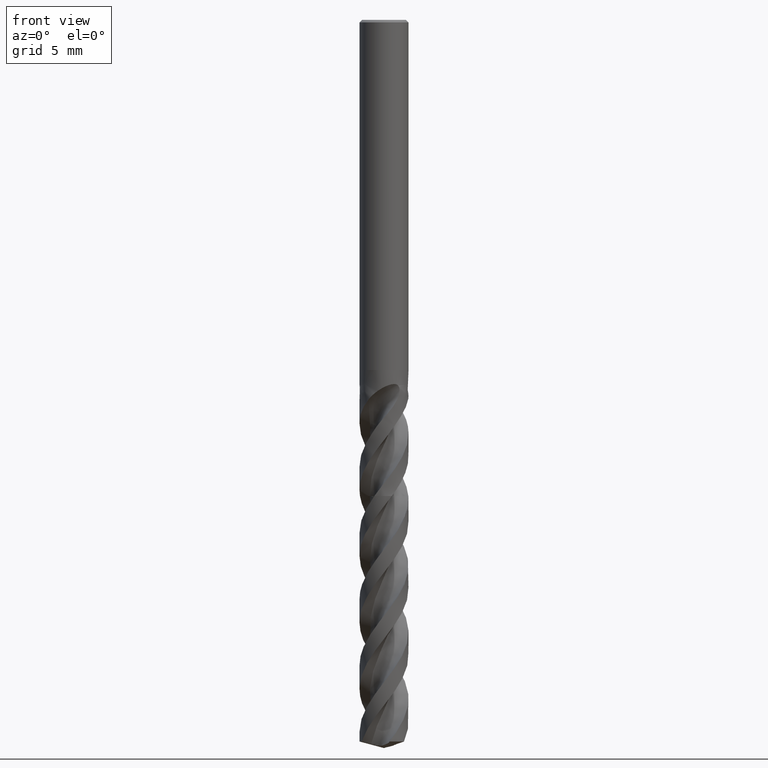
[diagram: clean part render]
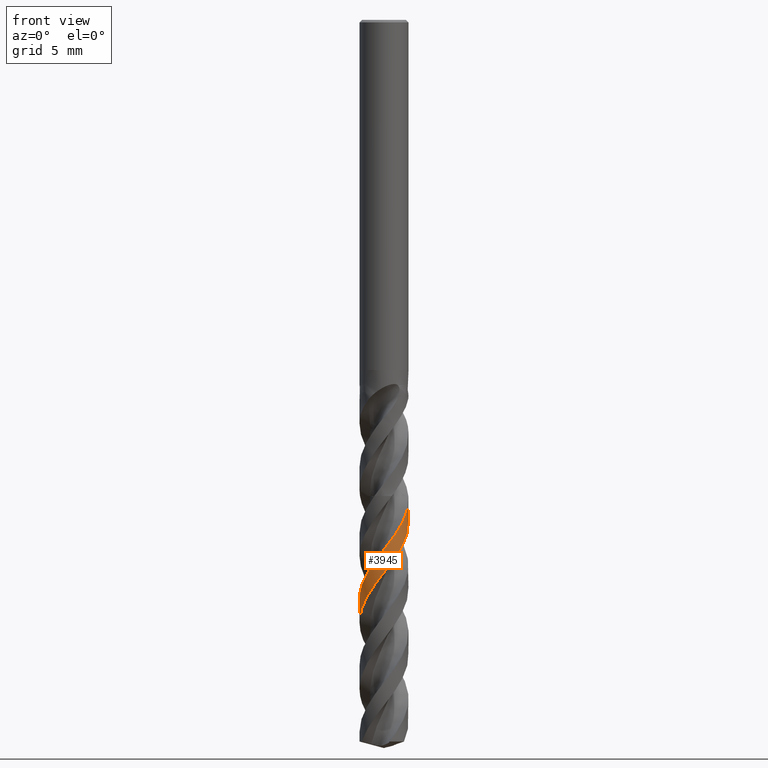
[diagram: same view with one face highlighted and labeled with its STEP entity id]
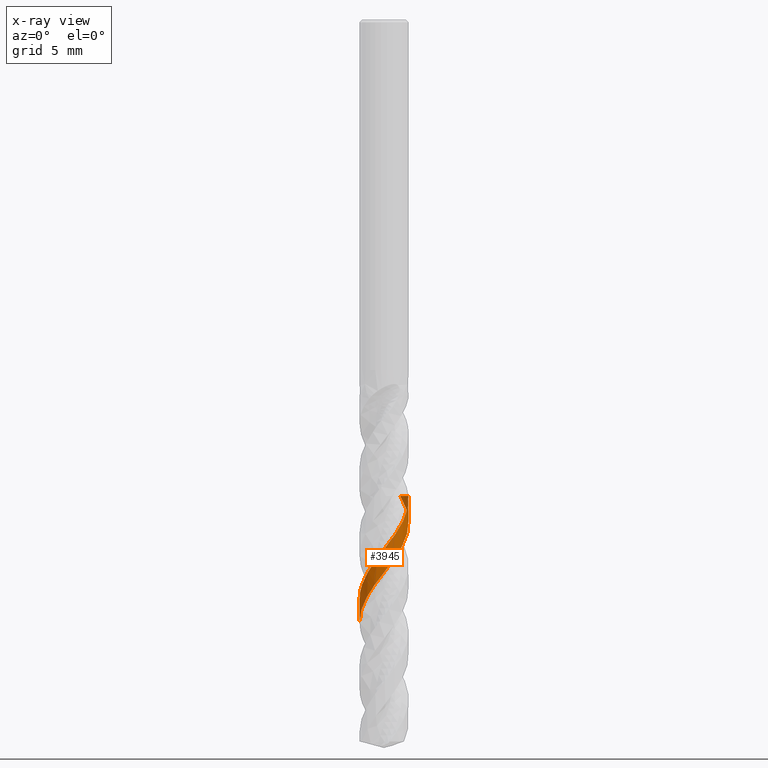
[diagram: x-ray of the same camera — body ghosted, the highlighted face saturated]
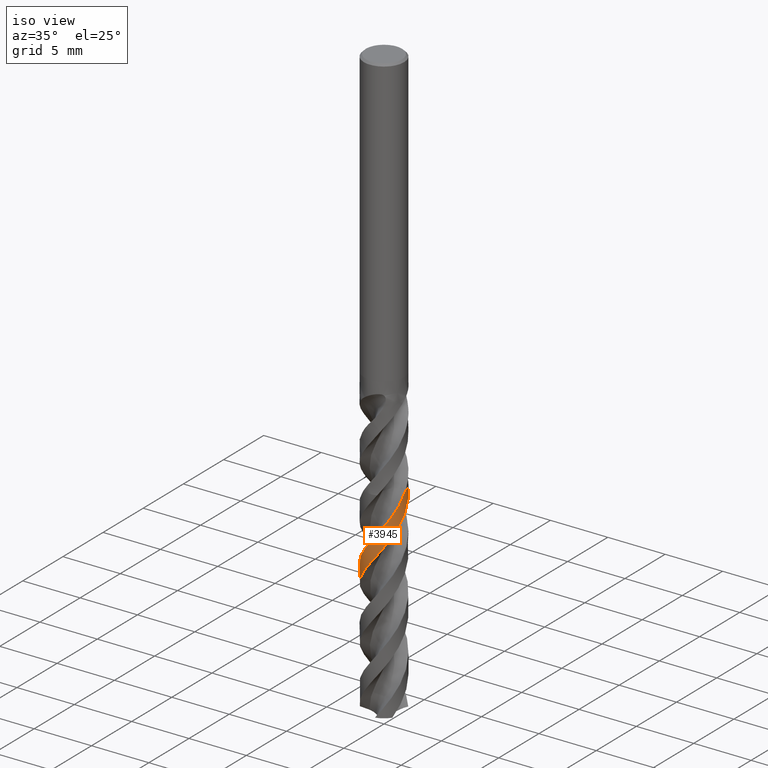
[diagram: same view with one face highlighted and labeled with its STEP entity id]
A machine part, front view. The second image highlights one B-rep face of the part: STEP entity #3945.
The next image is the same camera in x-ray: the body ghosted, the highlighted face saturated — about 0% of this face is hidden behind the body in this view.
A second angle (iso view) of the same face is appended — the face is thin or edge-on in the first view.
In plain terms, the highlighted face is a freeform B-spline surface patch.
Its self-contained STEP definition (entity closure, byte-faithful):
#3165 = EDGE_CURVE('', #3166, #3168, #3170, .T.);
#3166 = VERTEX_POINT('', #3167);
#3167 = CARTESIAN_POINT('', (1.15917467276284, 1.31103549838483, -34.));
#3168 = VERTEX_POINT('', #3169);
#3169 = CARTESIAN_POINT('', (1.73748708171023, 0.208898637836869, -34.));
#3170 = CIRCLE('', #3171, 1.75);
#3171 = AXIS2_PLACEMENT_3D('', #3172, #3173, #3174);
#3172 = CARTESIAN_POINT('', (1.27479581526258E-31, 2.0818995585505E-15, -34.));
#3173 = DIRECTION('', (3.74939945665464E-33, 6.12323399573677E-17, -1.));
#3174 = DIRECTION('', (-1., 6.12323399573677E-17, 0.));
#3420 = EDGE_CURVE('', #3421, #3166, #3423, .T.);
#3421 = VERTEX_POINT('', #3422);
#3422 = CARTESIAN_POINT('', (-1.75, 2.74092286467669E-15, -43.0126673516809));
#3423 = B_SPLINE_CURVE_WITH_KNOTS('', 3, (#3424, #3425, #3426, #3427, #3428, #3429, #3430, #3431, #3432, #3433, #3434, #3435, #3436, #3437, #3438, #3439, #3440, #3441, #3442, #3443, #3444, #3445, #3446, #3447, #3448, #3449, #3450, #3451, #3452, #3453, #3454, #3455, #3456, #3457, #3458, #3459, #3460, #3461, #3462, #3463, #3464, #3465, #3466, #3467, #3468, #3469, #3470, #3471, #3472, #3473, #3474, #3475, #3476, #3477, #3478, #3479, #3480, #3481, #3482, #3483, #3484, #3485, #3486, #3487, #3488, #3489, #3490, #3491, #3492, #3493, #3494, #3495, #3496, #3497, #3498, #3499, #3500, #3501, #3502, #3503, #3504, #3505, #3506, #3507, #3508, #3509, #3510, #3511, #3512, #3513, #3514, #3515, #3516, #3517, #3518, #3519, #3520, #3521, #3522, #3523, #3524, #3525, #3526, #3527, #3528, #3529, #3530, #3531, #3532, #3533, #3534, #3535, #3536, #3537, #3538, #3539, #3540, #3541, #3542, #3543, #3544, #3545, #3546, #3547, #3548, #3549, #3550), .UNSPECIFIED., .F., .U., (4, 3, 3, 3, 3, 3, 3, 3, 3, 3, 3, 3, 3, 3, 3, 3, 3, 3, 3, 3, 3, 3, 3, 3, 3, 3, 3, 3, 3, 3, 3, 3, 3, 3, 3, 3, 3, 3, 3, 3, 3, 3, 4), (0., 0.296682269985996, 0.59318894418124, 0.889527437894288, 1.18570384730019, 1.48172310960251, 1.77758912662678, 2.07330485873511, 2.36887239402488, 2.66429299631468, 2.95956713427466, 3.25469449311318, 3.54967396940595, 3.84450364887645, 4.13918076614815, 4.43370164462368, 4.49204199460828, 4.78872684799841, 5.08523551347422, 5.38157543726021, 5.6777527397957, 5.97377237680884, 6.26963826358319, 6.56535336935538, 6.86091978684039, 7.1563387804102, 7.45161081529594, 7.74673556923196, 8.04171192712699, 8.33653795856434, 8.63121087713699, 8.92572697975024, 8.96463064864863, 9.0035493957737, 9.30022269344043, 9.59671984811973, 9.8930482253542, 10.1892138725296, 10.4852216776425, 10.7810754916551, 11.0767782212495, 11.3723318968802, 11.3974255811242), .UNSPECIFIED.);
#3424 = CARTESIAN_POINT('', (-1.75, 2.99646931673152E-15, -43.0126673516809));
#3425 = CARTESIAN_POINT('', (-1.75, -0.060486160950008, -42.934427557653));
#3426 = CARTESIAN_POINT('', (-1.74685918130544, -0.121004097430318, -42.8561495871861));
#3427 = CARTESIAN_POINT('', (-1.74059699886423, -0.181168671532947, -42.7779124468362));
#3428 = CARTESIAN_POINT('', (-1.73433852278834, -0.241297636342289, -42.6997216122953));
#3429 = CARTESIAN_POINT('', (-1.72495616832768, -0.30113334695094, -42.6214926561631));
#3430 = CARTESIAN_POINT('', (-1.71250905073634, -0.360295366534432, -42.5433044713747));
#3431 = CARTESIAN_POINT('', (-1.70006899322971, -0.41942382904199, -42.4651606354248));
#3432 = CARTESIAN_POINT('', (-1.68455531684441, -0.477937996106314, -42.3869787316294));
#3433 = CARTESIAN_POINT('', (-1.66606602258422, -0.535466159892873, -42.3088375416248));
#3434 = CARTESIAN_POINT('', (-1.6475868411663, -0.592962858268198, -42.230739091463));
#3435 = CARTESIAN_POINT('', (-1.62611699406424, -0.649531588753099, -42.1526026267087));
#3436 = CARTESIAN_POINT('', (-1.60179218968851, -0.704813295173184, -42.0745068187867));
#3437 = CARTESIAN_POINT('', (-1.57748029171732, -0.760065669884974, -41.9964524474195));
#3438 = CARTESIAN_POINT('', (-1.55029240607916, -0.814087072033835, -41.9183601147428));
#3439 = CARTESIAN_POINT('', (-1.52040037898026, -0.866534873849105, -41.8403083819981));
#3440 = CARTESIAN_POINT('', (-1.49052382659057, -0.918955524127308, -41.7622970556088));
#3441 = CARTESIAN_POINT('', (-1.45791638724428, -0.9698560469927, -41.684247821674));
#3442 = CARTESIAN_POINT('', (-1.42278410080127, -1.01891383468237, -41.6062391303659));
#3443 = CARTESIAN_POINT('', (-1.38766965977615, -1.06794670350648, -41.5282700635127));
#3444 = CARTESIAN_POINT('', (-1.34999823356886, -1.11518717079931, -41.4502631437522));
#3445 = CARTESIAN_POINT('', (-1.31000775777223, -1.16033601796056, -41.3722967085049));
#3446 = CARTESIAN_POINT('', (-1.27003732305101, -1.20546223894813, -41.2943693458412));
#3447 = CARTESIAN_POINT('', (-1.22771068210514, -1.2485435123078, -41.2164041861269));
#3448 = CARTESIAN_POINT('', (-1.18329503909191, -1.28930712030162, -41.1384794516507));
#3449 = CARTESIAN_POINT('', (-1.13890147605329, -1.33005046382626, -41.0605934552415));
#3450 = CARTESIAN_POINT('', (-1.09237715731475, -1.36851867489047, -40.9826697191609));
#3451 = CARTESIAN_POINT('', (-1.04401562722045, -1.40446835853268, -40.9047863475695));
#3452 = CARTESIAN_POINT('', (-0.99567807392072, -1.44040021895511, -40.8269415891816));
#3453 = CARTESIAN_POINT('', (-0.94545742320505, -1.4738515144649, -40.7490591502945));
#3454 = CARTESIAN_POINT('', (-0.893670361261926, -1.50461067569055, -40.6712170133963));
#3455 = CARTESIAN_POINT('', (-0.841909042377462, -1.53535454670931, -40.5934135713887));
#3456 = CARTESIAN_POINT('', (-0.788531796417692, -1.56343929628838, -40.5155725100908));
#3457 = CARTESIAN_POINT('', (-0.733875017226447, -1.58868733836803, -40.4377716862796));
#3458 = CARTESIAN_POINT('', (-0.679245625477972, -1.61392272914773, -40.3600098469392));
#3459 = CARTESIAN_POINT('', (-0.623284090208726, -1.63634915130003, -40.2822104517754));
#3460 = CARTESIAN_POINT('', (-0.566342879517583, -1.65582479230737, -40.204451227367));
#3461 = CARTESIAN_POINT('', (-0.509430584778573, -1.67529054317195, -40.1267314907388));
#3462 = CARTESIAN_POINT('', (-0.451483472193753, -1.69182771139324, -40.0489742642159));
#3463 = CARTESIAN_POINT('', (-0.392866290277221, -1.70533166215957, -39.971257139278));
#3464 = CARTESIAN_POINT('', (-0.334279440334652, -1.71882862518834, -39.8935802297469));
#3465 = CARTESIAN_POINT('', (-0.274965429678159, -1.72930882282711, -39.8158658989029));
#3466 = CARTESIAN_POINT('', (-0.215297373467481, -1.73670580150418, -39.7381915978375));
#3467 = CARTESIAN_POINT('', (-0.155660953460383, -1.74409885827834, -39.6605584799471));
#3468 = CARTESIAN_POINT('', (-0.0956120452036993, -1.74841925784216, -39.5828880121624));
#3469 = CARTESIAN_POINT('', (-0.0355281386385147, -1.74963932036451, -39.5052574995245));
#3470 = CARTESIAN_POINT('', (-0.0236263809240908, -1.74988099720224, -39.4898800115168));
#3471 = CARTESIAN_POINT('', (-0.0117218520351512, -1.75000123193752, -39.4745022799909));
#3472 = CARTESIAN_POINT('', (0.000182499961340634, -1.74999999048393, -39.4591249010265));
#3473 = CARTESIAN_POINT('', (0.06072106251223, -1.749993677178, -39.3809245572713));
#3474 = CARTESIAN_POINT('', (0.121291211122758, -1.7468410843346, -39.3026859288979));
#3475 = CARTESIAN_POINT('', (0.181506676010057, -1.74056178475915, -39.2244882336361));
#3476 = CARTESIAN_POINT('', (0.241686381615926, -1.73428621417991, -39.146336976501));
#3477 = CARTESIAN_POINT('', (0.301571814453753, -1.72488139704694, -39.0681475014472));
#3478 = CARTESIAN_POINT('', (0.360781404951683, -1.71240672091683, -38.9899988892189));
#3479 = CARTESIAN_POINT('', (0.419957299549572, -1.69993914406636, -38.911894750999));
#3480 = CARTESIAN_POINT('', (0.478517072021741, -1.68439278417158, -38.8337524600298));
#3481 = CARTESIAN_POINT('', (0.53608790170583, -1.66586606954, -38.755650963274));
#3482 = CARTESIAN_POINT('', (0.593627138480681, -1.64734952173799, -38.6775923259578));
#3483 = CARTESIAN_POINT('', (0.650235807345724, -1.62583745590083, -38.5994956000669));
#3484 = CARTESIAN_POINT('', (0.705553780235508, -1.60146616049025, -38.5214396008986));
#3485 = CARTESIAN_POINT('', (0.760842305436302, -1.5771078387714, -38.4434251536647));
#3486 = CARTESIAN_POINT('', (0.814896532811962, -1.54986909150007, -38.3653726814871));
#3487 = CARTESIAN_POINT('', (0.867372824481422, -1.51992249254727, -38.2873608691967));
#3488 = CARTESIAN_POINT('', (0.919821860383473, -1.48999144761915, -38.2093895756196));
#3489 = CARTESIAN_POINT('', (0.970746779099871, -1.45732558822441, -38.1313803205664));
#3490 = CARTESIAN_POINT('', (1.01982404479793, -1.42213182147506, -38.0534116588283));
#3491 = CARTESIAN_POINT('', (1.06887629943646, -1.38695599039069, -37.9754827319615));
#3492 = CARTESIAN_POINT('', (1.11613157076542, -1.34921984466368, -37.8975159072455));
#3493 = CARTESIAN_POINT('', (1.16128981341657, -1.30916231585503, -37.819589609203));
#3494 = CARTESIAN_POINT('', (1.20642535008611, -1.26912492834194, -37.7417024932231));
#3495 = CARTESIAN_POINT('', (1.2495108485816, -1.2267286812435, -37.6637775434521));
#3496 = CARTESIAN_POINT('', (1.29027288354992, -1.18224188979065, -37.5858930533629));
#3497 = CARTESIAN_POINT('', (1.33101458705151, -1.13777728765492, -37.5080474108415));
#3498 = CARTESIAN_POINT('', (1.3694756515466, -1.09118001972384, -37.4301639992488));
#3499 = CARTESIAN_POINT('', (1.4054121096512, -1.04274484033524, -37.3523209797585));
#3500 = CARTESIAN_POINT('', (1.44133069085991, -0.994333755437443, -37.2745166839386));
#3501 = CARTESIAN_POINT('', (1.47476288556093, -0.944038461459048, -37.1966746846218));
#3502 = CARTESIAN_POINT('', (1.50549670099969, -0.892176934962488, -37.1188730090417));
#3503 = CARTESIAN_POINT('', (1.53621518648846, -0.840341276865145, -37.0411101407419));
#3504 = CARTESIAN_POINT('', (1.56426852155299, -0.786889420670455, -36.9633096355362));
#3505 = CARTESIAN_POINT('', (1.58947885708529, -0.732159110357061, -36.8855493847479));
#3506 = CARTESIAN_POINT('', (1.61467651623605, -0.677456319800192, -36.807828233741));
#3507 = CARTESIAN_POINT('', (1.63705908317115, -0.621421983822991, -36.7300695135692));
#3508 = CARTESIAN_POINT('', (1.65648465107824, -0.564409958046666, -36.6523509774045));
#3509 = CARTESIAN_POINT('', (1.67590031928749, -0.507426986856074, -36.5746720483198));
#3510 = CARTESIAN_POINT('', (1.69238130290524, -0.449410679198892, -36.4969556190708));
#3511 = CARTESIAN_POINT('', (1.70582304683151, -0.390727184744754, -36.4192793022147));
#3512 = CARTESIAN_POINT('', (1.71925781001763, -0.332074166561325, -36.3416433252273));
#3513 = CARTESIAN_POINT('', (1.72966984547435, -0.27269635175845, -36.2639699184238));
#3514 = CARTESIAN_POINT('', (1.73699295519041, -0.212968245565374, -36.1863365511044));
#3515 = CARTESIAN_POINT('', (1.74431216777034, -0.153271924852693, -36.1087444979004));
#3516 = CARTESIAN_POINT('', (1.74855301832922, -0.0931663472217357, -36.0311150866464));
#3517 = CARTESIAN_POINT('', (1.74968825667859, -0.0330303563672795, -35.9535256406007));
#3518 = CARTESIAN_POINT('', (1.749838214309, -0.025086781614253, -35.943276577503));
#3519 = CARTESIAN_POINT('', (1.74993407670954, -0.0171420843687415, -35.9330274500987));
#3520 = CARTESIAN_POINT('', (1.74997583200947, -0.00919713992210194, -35.9227784366943));
#3521 = CARTESIAN_POINT('', (1.75001760349287, -0.00124911618559846, -35.9125254509924));
#3522 = CARTESIAN_POINT('', (1.75000522664751, 0.00669929335044181, -35.9022724007706));
#3523 = CARTESIAN_POINT('', (1.74993870155549, 0.0146472112800254, -35.892019463778));
#3524 = CARTESIAN_POINT('', (1.7494315881491, 0.0752333091360699, -35.8138624609699));
#3525 = CARTESIAN_POINT('', (1.74577286156797, 0.135825116694477, -35.7356671005222));
#3526 = CARTESIAN_POINT('', (1.73898537299693, 0.196035385843737, -35.6575127468798));
#3527 = CARTESIAN_POINT('', (1.73220191434204, 0.256209906522323, -35.579404795598));
#3528 = CARTESIAN_POINT('', (1.72228661472492, 0.316063630166367, -35.5012585567798));
#3529 = CARTESIAN_POINT('', (1.70930225236973, 0.375214352129315, -35.4231532513957));
#3530 = CARTESIAN_POINT('', (1.69632528120689, 0.434331403254097, -35.3450924065187));
#3531 = CARTESIAN_POINT('', (1.68026974845682, 0.492805450988603, -35.266993342417));
#3532 = CARTESIAN_POINT('', (1.66123754911167, 0.550263396403462, -35.1889351403243));
#3533 = CARTESIAN_POINT('', (1.64221580138425, 0.607689788529575, -35.1109198042438));
#3534 = CARTESIAN_POINT('', (1.62020161844846, 0.664158674459857, -35.0328663159565));
#3535 = CARTESIAN_POINT('', (1.59533479344582, 0.719310014403508, -34.9548536196841));
#3536 = CARTESIAN_POINT('', (1.57048122126634, 0.774431961332373, -34.8768825004312));
#3537 = CARTESIAN_POINT('', (1.5427531810572, 0.828292920787621, -34.7988732951097));
#3538 = CARTESIAN_POINT('', (1.51232674999035, 0.880549715384443, -34.7209048128117));
#3539 = CARTESIAN_POINT('', (1.48191614755882, 0.932779324612633, -34.6429768917832));
#3540 = CARTESIAN_POINT('', (1.44877954335018, 0.983458683494607, -34.5650109502891));
#3541 = CARTESIAN_POINT('', (1.41312730610073, 1.03226509034865, -34.4870856634735));
#3542 = CARTESIAN_POINT('', (1.37749327546977, 1.08104657311102, -34.4092001709618));
#3543 = CARTESIAN_POINT('', (1.33931054536702, 1.12800580237156, -34.3312767233375));
#3544 = CARTESIAN_POINT('', (1.2988214265332, 1.17284393760562, -34.2533938623982));
#3545 = CARTESIAN_POINT('', (1.25835271692475, 1.21765947141903, -34.1755502596327));
#3546 = CARTESIAN_POINT('', (1.21553947962653, 1.26040086135182, -34.0976687670913));
#3547 = CARTESIAN_POINT('', (1.17065328584024, 1.30079625012968, -34.0198277933516));
#3548 = CARTESIAN_POINT('', (1.1668422692072, 1.30422597953075, -34.0132187846425));
#3549 = CARTESIAN_POINT('', (1.16301570764315, 1.30763938107455, -34.0066089882677));
#3550 = CARTESIAN_POINT('', (1.15917467276284, 1.31103549838483, -34.));
#3945 = ADVANCED_FACE('', (#3946), #4067, .T.);
#3946 = FACE_OUTER_BOUND('', #3947, .T.);
#3947 = EDGE_LOOP('', (#3948, #3949, #4060, #4066));
#3948 = ORIENTED_EDGE('', *, *, #3165, .T.);
#3949 = ORIENTED_EDGE('', *, *, #3950, .T.);
#3950 = EDGE_CURVE('', #3168, #3951, #3953, .T.);
#3951 = VERTEX_POINT('', #3952);
#3952 = CARTESIAN_POINT('', (-1.75, 2.63965504623857E-15, -41.3588383699921));
#3953 = B_SPLINE_CURVE_WITH_KNOTS('', 3, (#3954, #3955, #3956, #3957, #3958, #3959, #3960, #3961, #3962, #3963, #3964, #3965, #3966, #3967, #3968, #3969, #3970, #3971, #3972, #3973, #3974, #3975, #3976, #3977, #3978, #3979, #3980, #3981, #3982, #3983, #3984, #3985, #3986, #3987, #3988, #3989, #3990, #3991, #3992, #3993, #3994, #3995, #3996, #3997, #3998, #3999, #4000, #4001, #4002, #4003, #4004, #4005, #4006, #4007, #4008, #4009, #4010, #4011, #4012, #4013, #4014, #4015, #4016, #4017, #4018, #4019, #4020, #4021, #4022, #4023, #4024, #4025, #4026, #4027, #4028, #4029, #4030, #4031, #4032, #4033, #4034, #4035, #4036, #4037, #4038, #4039, #4040, #4041, #4042, #4043, #4044, #4045, #4046, #4047, #4048, #4049, #4050, #4051, #4052, #4053, #4054, #4055, #4056, #4057, #4058, #4059), .UNSPECIFIED., .F., .U., (4, 3, 3, 3, 3, 3, 3, 3, 3, 3, 3, 3, 3, 3, 3, 3, 3, 3, 3, 3, 3, 3, 3, 3, 3, 3, 3, 3, 3, 3, 3, 3, 3, 3, 3, 4), (2.46115938835242, 2.65649434994881, 2.78763679765285, 2.81358034008505, 3.11026625842097, 3.40677407899171, 3.70311147901425, 3.99928478399249, 4.2952991334873, 4.59115860913498, 4.88686633208073, 5.18242453499177, 5.47783461230135, 5.77309715114922, 6.06821194451017, 6.36317798715319, 6.65799345427854, 6.95265566187529, 7.24716100696226, 7.28606460764109, 7.5827516617903, 7.87926142825761, 8.17560156919617, 8.47177840153072, 8.76779706229456, 9.06366163640416, 9.35937525401598, 9.65494016261838, 9.95035777750739, 10.245628713118, 10.5407527967164, 10.8357290651208, 11.1305557443308, 11.4252302111595, 11.7197489350956, 11.7722307903465), .UNSPECIFIED.);
#3954 = CARTESIAN_POINT('', (1.73748708171023, 0.208898637836869, -34.));
#3955 = CARTESIAN_POINT('', (1.74225788361619, 0.169218117337372, -34.0514025603561));
#3956 = CARTESIAN_POINT('', (1.74567030169223, 0.129353363084682, -34.102834983314));
#3957 = CARTESIAN_POINT('', (1.74771283164648, 0.0894419258428294, -34.1542395815302));
#3958 = CARTESIAN_POINT('', (1.74908412931649, 0.0626464995222831, -34.1887511957248));
#3959 = CARTESIAN_POINT('', (1.74983911319217, 0.0358174196144054, -34.2232666825135));
#3960 = CARTESIAN_POINT('', (1.74997691606579, 0.00898850582014549, -34.2577792488959));
#3961 = CARTESIAN_POINT('', (1.75000417722159, 0.00368101708848892, -34.2646067730581));
#3962 = CARTESIAN_POINT('', (1.75000729251148, -0.00162659089571133, -34.2714343436221));
#3963 = CARTESIAN_POINT('', (1.74998626247469, -0.00693405724424155, -34.2782619072204));
#3964 = CARTESIAN_POINT('', (1.74974576656731, -0.0676293355303956, -34.3563407579193));
#3965 = CARTESIAN_POINT('', (1.74634249116329, -0.128339937697265, -34.4344616607191));
#3966 = CARTESIAN_POINT('', (1.73979924834218, -0.188675847601034, -34.5125452410702));
#3967 = CARTESIAN_POINT('', (1.73325993336818, -0.248975538425805, -34.5905819485828));
#3968 = CARTESIAN_POINT('', (1.72357778006185, -0.308962318973827, -34.6686606437474));
#3969 = CARTESIAN_POINT('', (1.71081583084648, -0.368251534858492, -34.7467020725228));
#3970 = CARTESIAN_POINT('', (1.69806121667671, -0.427506673730774, -34.824698646282));
#3971 = CARTESIAN_POINT('', (1.68221741834007, -0.486125162724797, -34.9027371482651));
#3972 = CARTESIAN_POINT('', (1.66338682374917, -0.543731803905071, -34.980738435324));
#3973 = CARTESIAN_POINT('', (1.64456665648622, -0.601306545755945, -35.0586965296416));
#3974 = CARTESIAN_POINT('', (1.62274396925956, -0.657928815378445, -35.1366964969416));
#3975 = CARTESIAN_POINT('', (1.59805919935459, -0.713236843803136, -35.2146592969885));
#3976 = CARTESIAN_POINT('', (1.57338767770483, -0.768515188545172, -35.2925802545925));
#3977 = CARTESIAN_POINT('', (1.54583225983352, -0.822536486477688, -35.3705430333291));
#3978 = CARTESIAN_POINT('', (1.51556974007873, -0.874956206308465, -35.4484686894561));
#3979 = CARTESIAN_POINT('', (1.48532305358631, -0.927348500294214, -35.5263535751063));
#3980 = CARTESIAN_POINT('', (1.4523416676617, -0.97819362298383, -35.6042802326577));
#3981 = CARTESIAN_POINT('', (1.41683666459507, -1.02716788591696, -35.6821698099644));
#3982 = CARTESIAN_POINT('', (1.38134987280978, -1.07611702889505, -35.760019436028));
#3983 = CARTESIAN_POINT('', (1.34330644419245, -1.1232463658925, -35.8379107866162));
#3984 = CARTESIAN_POINT('', (1.30294932662575, -1.16825641545232, -35.9157650977884));
#3985 = CARTESIAN_POINT('', (1.26261261501112, -1.213243706377, -35.9935800431326));
#3986 = CARTESIAN_POINT('', (1.21992418573902, -1.25615889102661, -36.0714366667149));
#3987 = CARTESIAN_POINT('', (1.17515610397983, -1.29672978344717, -36.1492562909196));
#3988 = CARTESIAN_POINT('', (1.13041045874574, -1.33728034285791, -36.2270369140797));
#3989 = CARTESIAN_POINT('', (1.08354258236833, -1.37552944929842, -36.3048591695051));
#3990 = CARTESIAN_POINT('', (1.03485061382121, -1.41123499356905, -36.3826444655607));
#3991 = CARTESIAN_POINT('', (0.986182963801764, -1.44692270520133, -36.4603909128302));
#3992 = CARTESIAN_POINT('', (0.935644592249774, -1.48010493687973, -36.5381789459104));
#3993 = CARTESIAN_POINT('', (0.883556407123805, -1.51057210202971, -36.6159300603783));
#3994 = CARTESIAN_POINT('', (0.831494286239862, -1.5410240218114, -36.6936422692121));
#3995 = CARTESIAN_POINT('', (0.77783220496476, -1.56879384247795, -36.7713960160958));
#3996 = CARTESIAN_POINT('', (0.722910310616845, -1.5937065861707, -36.8491128866845));
#3997 = CARTESIAN_POINT('', (0.668016099297359, -1.61860677275484, -36.9267905845833));
#3998 = CARTESIAN_POINT('', (0.611808971429156, -1.64067743714756, -37.0045097706024));
#3999 = CARTESIAN_POINT('', (0.554644598044326, -1.65977991609137, -37.0821921250524));
#4000 = CARTESIAN_POINT('', (0.497509406171503, -1.67887264352062, -37.1598348238842));
#4001 = CARTESIAN_POINT('', (0.43936149029214, -1.69501909160226, -37.2375189578293));
#4002 = CARTESIAN_POINT('', (0.380568184089736, -1.70811822110142, -37.3151663082354));
#4003 = CARTESIAN_POINT('', (0.32180544152933, -1.72121054103108, -37.3927732937432));
#4004 = CARTESIAN_POINT('', (0.262340050792265, -1.7312716266471, -37.4704216573125));
#4005 = CARTESIAN_POINT('', (0.20254704370465, -1.73823896374654, -37.548033289631));
#4006 = CARTESIAN_POINT('', (0.142785867238394, -1.74520259180574, -37.6256036056384));
#4007 = CARTESIAN_POINT('', (0.0826386399410786, -1.74908262391882, -37.7032152375737));
#4008 = CARTESIAN_POINT('', (0.0224840667004459, -1.74985555596595, -37.780790195828));
#4009 = CARTESIAN_POINT('', (0.0145377610207729, -1.74995765883171, -37.7910377015149));
#4010 = CARTESIAN_POINT('', (0.00659074430030753, -1.75000563271596, -37.8012853381211));
#4011 = CARTESIAN_POINT('', (-0.00135610476778091, -1.74999947456559, -37.811532929239));
#4012 = CARTESIAN_POINT('', (-0.061960449831987, -1.74995251121361, -37.8896832178456));
#4013 = CARTESIAN_POINT('', (-0.122589624219653, -1.74675239718046, -37.9678756226529));
#4014 = CARTESIAN_POINT('', (-0.182856202324341, -1.74042052656004, -38.0460306188689));
#4015 = CARTESIAN_POINT('', (-0.243086767661439, -1.73409243959869, -38.1241389129525));
#4016 = CARTESIAN_POINT('', (-0.303015356075448, -1.72463002559965, -38.2022892565754));
#4017 = CARTESIAN_POINT('', (-0.362259715869408, -1.71209459384077, -38.2804022521221));
#4018 = CARTESIAN_POINT('', (-0.421470183505362, -1.6995663332765, -38.3584705612549));
#4019 = CARTESIAN_POINT('', (-0.480056229044303, -1.68395609222499, -38.4365808555591));
#4020 = CARTESIAN_POINT('', (-0.537644825973662, -1.66536423676743, -38.5146538604688));
#4021 = CARTESIAN_POINT('', (-0.595201686691577, -1.64678262700239, -38.5926838405173));
#4022 = CARTESIAN_POINT('', (-0.651819440301546, -1.62520421906254, -38.6707557426907));
#4023 = CARTESIAN_POINT('', (-0.707138218032116, -1.60076717251399, -38.7487904132539));
#4024 = CARTESIAN_POINT('', (-0.76242745308072, -1.57634317643264, -38.8267834098404));
#4025 = CARTESIAN_POINT('', (-0.816473964895919, -1.54903936839154, -38.9048182659025));
#4026 = CARTESIAN_POINT('', (-0.868934815622167, -1.51903004782647, -38.9828159481353));
#4027 = CARTESIAN_POINT('', (-0.921368358891019, -1.48903634801919, -39.0607730302185));
#4028 = CARTESIAN_POINT('', (-0.972269814362066, -1.45631026113576, -39.1387719086301));
#4029 = CARTESIAN_POINT('', (-1.02131675004189, -1.42106020142845, -39.2167336718595));
#4030 = CARTESIAN_POINT('', (-1.07033866091548, -1.38582812706318, -39.2946556573129));
#4031 = CARTESIAN_POINT('', (-1.11755639350191, -1.348039845572, -39.3726193745687));
#4032 = CARTESIAN_POINT('', (-1.16267136179112, -1.30793551235172, -39.4505460370149));
#4033 = CARTESIAN_POINT('', (-1.20776364258188, -1.26785134687251, -39.5284335115574));
#4034 = CARTESIAN_POINT('', (-1.25079975880502, -1.22541392578105, -39.6063626511185));
#4035 = CARTESIAN_POINT('', (-1.29150804177654, -1.1808924498135, -39.6842547988284));
#4036 = CARTESIAN_POINT('', (-1.33219603792108, -1.136393160964, -39.7621081292655));
#4037 = CARTESIAN_POINT('', (-1.37059859517185, -1.08976807786486, -39.8400030547913));
#4038 = CARTESIAN_POINT('', (-1.4064737337813, -1.04131245847886, -39.9178610548825));
#4039 = CARTESIAN_POINT('', (-1.44233105984614, -0.99288089803494, -39.9956803973084));
#4040 = CARTESIAN_POINT('', (-1.47569874249886, -0.942572999277365, -40.073541260838));
#4041 = CARTESIAN_POINT('', (-1.50636693516991, -0.890706829785656, -40.1513652697023));
#4042 = CARTESIAN_POINT('', (-1.53701987511792, -0.838866455759844, -40.229150573056));
#4043 = CARTESIAN_POINT('', (-1.56500612017636, -0.785418452412884, -40.3069773185346));
#4044 = CARTESIAN_POINT('', (-1.5901500497823, -0.730700225247903, -40.3847672853962));
#4045 = CARTESIAN_POINT('', (-1.61528138585542, -0.676009404132854, -40.4625182905474));
#4046 = CARTESIAN_POINT('', (-1.637597915502, -0.619995977662083, -40.5403106528701));
#4047 = CARTESIAN_POINT('', (-1.65695996536165, -0.5630130311003, -40.6180663188724));
#4048 = CARTESIAN_POINT('', (-1.67631219628415, -0.506058981890541, -40.6957825532027));
#4049 = CARTESIAN_POINT('', (-1.69273192126058, -0.448080563304554, -40.773540052744));
#4050 = CARTESIAN_POINT('', (-1.70611674748606, -0.389442735132688, -40.8512609455319));
#4051 = CARTESIAN_POINT('', (-1.71949466342691, -0.330835180352233, -40.9289417127715));
#4052 = CARTESIAN_POINT('', (-1.72985392808062, -0.271511469706329, -41.0066636451565));
#4053 = CARTESIAN_POINT('', (-1.73713036264629, -0.211844525944101, -41.0843490687139));
#4054 = CARTESIAN_POINT('', (-1.74440295143266, -0.152209117667507, -41.1619934335643));
#4055 = CARTESIAN_POINT('', (-1.74860309845106, -0.092172413197758, -41.2396788542132));
#4056 = CARTESIAN_POINT('', (-1.74970536462569, -0.0321113219964167, -41.3173278734857));
#4057 = CARTESIAN_POINT('', (-1.74990178328816, -0.0214087172434392, -41.3311645645298));
#4058 = CARTESIAN_POINT('', (-1.75, -0.0107042258919169, -41.3450015388558));
#4059 = CARTESIAN_POINT('', (-1.75, 2.34995622575045E-15, -41.3588383699921));
#4060 = ORIENTED_EDGE('', *, *, #4061, .T.);
#4061 = EDGE_CURVE('', #3951, #3421, #4062, .T.);
#4062 = LINE('', #4063, #4064);
#4063 = CARTESIAN_POINT('', (-1.75, 2.63965504623857E-15, -41.3588383699921));
#4064 = VECTOR('', #4065, 1.65382898168882);
#4065 = DIRECTION('', (0., 1.01267818438117E-16, -1.65382898168882));
#4066 = ORIENTED_EDGE('', *, *, #3420, .T.);
#4067 = (
   BOUNDED_SURFACE ()
   B_SPLINE_SURFACE (2, 1, ((#4068, #4069), (#4070, #4071), (#4072, #4073), (#4074, #4075), (#4076, #4077), (#4078, #4079), (#4080, #4081)), .UNSPECIFIED., .F., .F., .U.)
   B_SPLINE_SURFACE_WITH_KNOTS ((3, 2, 2, 3), (2, 2), (4.0214400004399, 5.49778714378214, 8.24668071567321, 10.9955742875643), (0.339224674472625, 0.678926802084184), .UNSPECIFIED.)
   GEOMETRIC_REPRESENTATION_ITEM ()
   RATIONAL_B_SPLINE_SURFACE (((0.854358351659982, 0.854358351659982), (0.84269595908652, 0.84269595908652), (1., 1.), (0.707106781186548, 0.707106781186548), (1., 1.), (0.707106781186548, 0.707106781186548), (1., 1.)))
   REPRESENTATION_ITEM ('')
   SURFACE ()
);
#4068 = CARTESIAN_POINT('', (1.15917467276284, 1.31103549838484, -34.));
#4069 = CARTESIAN_POINT('', (1.15917467276284, 1.31103549838484, -43.012667351681));
#4070 = CARTESIAN_POINT('', (1.75, 0.788647083880515, -34.));
#4071 = CARTESIAN_POINT('', (1.75, 0.788647083880516, -43.0126673516809));
#4072 = CARTESIAN_POINT('', (1.75, 2.18905615347589E-15, -34.));
#4073 = CARTESIAN_POINT('', (1.75, 2.74092286467669E-15, -43.0126673516809));
#4074 = CARTESIAN_POINT('', (1.75, -1.75, -34.));
#4075 = CARTESIAN_POINT('', (1.75, -1.75, -43.0126673516809));
#4076 = CARTESIAN_POINT('', (2.14313189850787E-16, -1.75, -34.));
#4077 = CARTESIAN_POINT('', (2.14313189850787E-16, -1.75, -43.0126673516809));
#4078 = CARTESIAN_POINT('', (-1.75, -1.75, -34.));
#4079 = CARTESIAN_POINT('', (-1.75, -1.75, -43.0126673516809));
#4080 = CARTESIAN_POINT('', (-1.75, 2.18905615347589E-15, -34.));
#4081 = CARTESIAN_POINT('', (-1.75, 2.74092286467669E-15, -43.0126673516809));